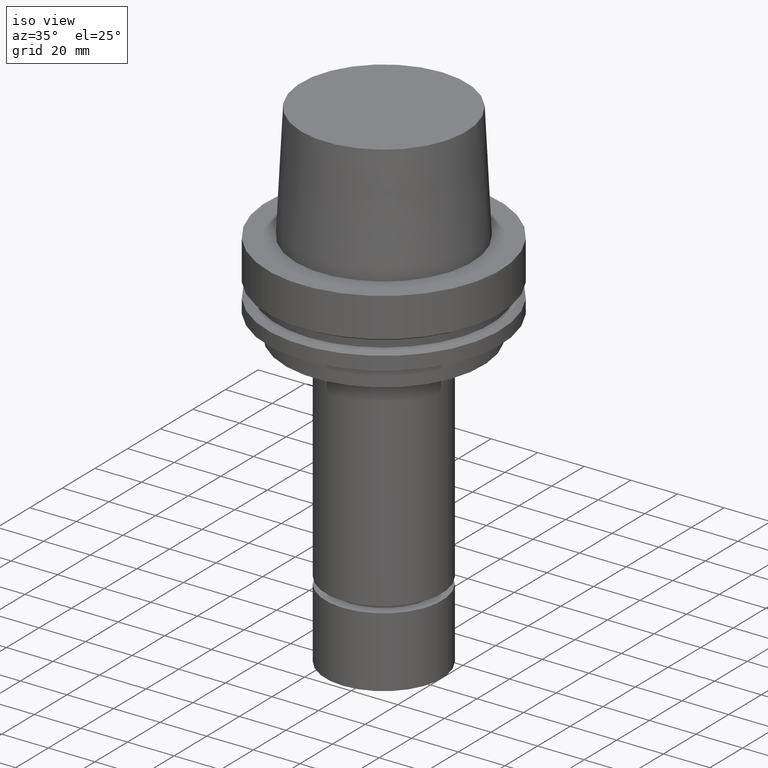
[diagram: clean part render]
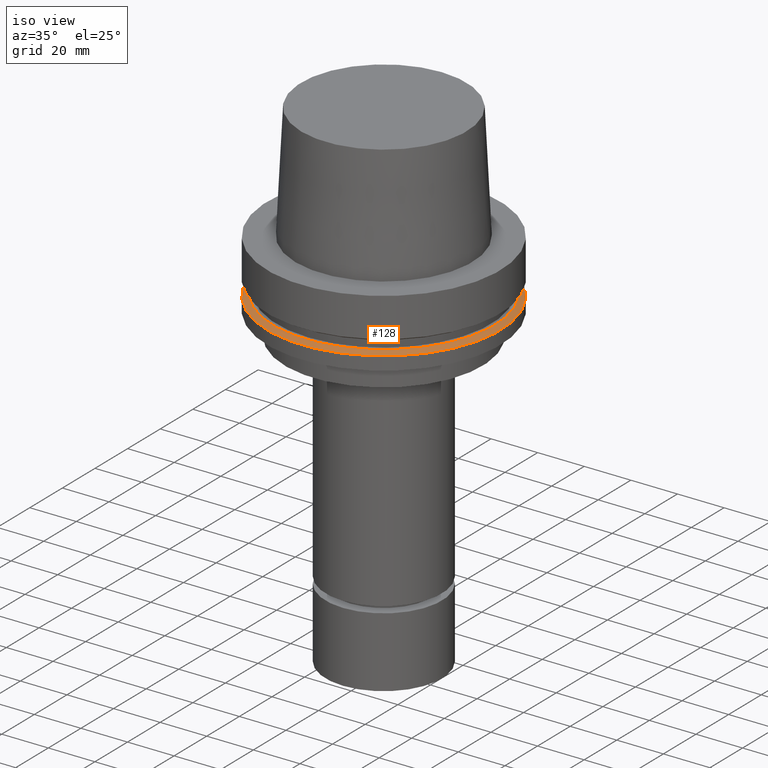
[diagram: same view with one face highlighted and labeled with its STEP entity id]
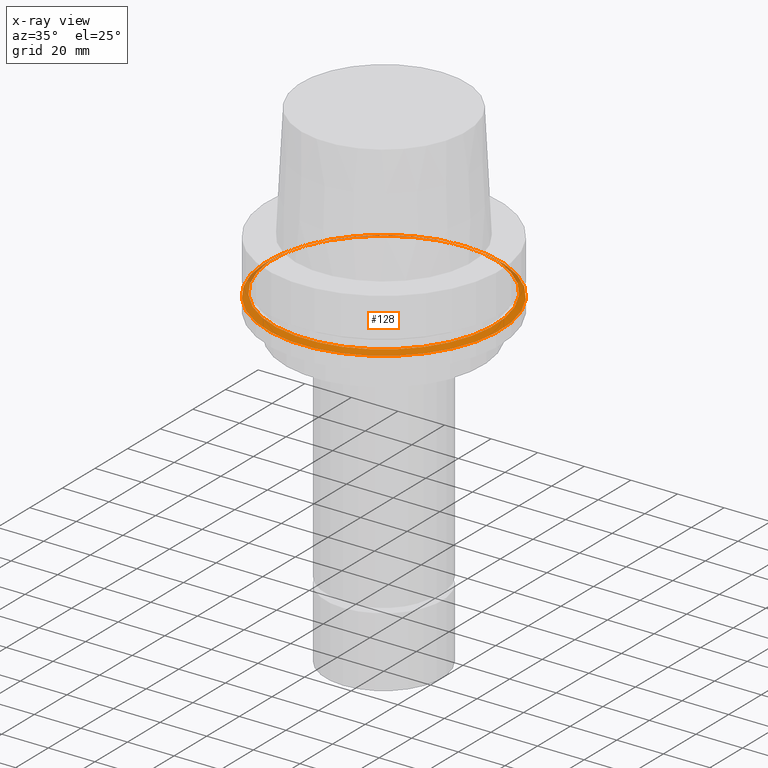
[diagram: x-ray of the same camera — body ghosted, the highlighted face saturated]
A machine part, iso view. The second image highlights one B-rep face of the part: STEP entity #128.
The next image is the same camera in x-ray: the body ghosted, the highlighted face saturated — about 10% of this face is hidden behind the body in this view.
In plain terms, the highlighted conical surface has half-angle 60 deg.
Its self-contained STEP definition (entity closure, byte-faithful):
#128=ADVANCED_FACE('Unnamed[1]',(#294,#295),#296,.T.);
#154=EDGE_CURVE('Unnamed[1]',#334,#334,#335,.T.);
#198=EDGE_CURVE('Unnamed[1]',#402,#402,#403,.T.);
#294=FACE_BOUND('',#512,.T.);
#295=FACE_BOUND('',#513,.T.);
#296=CONICAL_SURFACE('',#514,48.81129763,1.04719755328238);
#334=VERTEX_POINT('',#562);
#335=CIRCLE('',#563,50.0);
#402=VERTEX_POINT('',#646);
#403=CIRCLE('',#647,47.62259526);
#512=EDGE_LOOP('',(#732));
#513=EDGE_LOOP('',(#733));
#514=AXIS2_PLACEMENT_3D('',#734,#735,#736);
#562=CARTESIAN_POINT('',(1.42350465615161E-015,50.0,-23.24759526));
#563=AXIS2_PLACEMENT_3D('',#779,#780,#781);
#646=CARTESIAN_POINT('',(1.33945743656742E-015,47.62259526,-21.875));
#647=AXIS2_PLACEMENT_3D('',#854,#855,#856);
#732=ORIENTED_EDGE('',*,*,#154,.F.);
#733=ORIENTED_EDGE('',*,*,#198,.T.);
#734=CARTESIAN_POINT('',(1.38148104635951E-015,2.76296209271903E-015,-22.56129763));
#735=DIRECTION('',(6.12323399573677E-017,1.22464679914735E-016,-1.0));
#736=DIRECTION('',(-1.23259516440783E-032,1.0,1.22464679914735E-016));
#779=CARTESIAN_POINT('',(1.42350465615161E-015,2.84700931230322E-015,-23.24759526));
#780=DIRECTION('',(6.12323399573677E-017,1.22464679914735E-016,-1.0));
#781=DIRECTION('',(-1.23259516440783E-032,1.0,1.22464679914735E-016));
#854=CARTESIAN_POINT('',(1.33945743656742E-015,2.67891487313483E-015,-21.875));
#855=DIRECTION('',(6.12323399573676E-017,1.22464679914735E-016,-1.0));
#856=DIRECTION('',(-1.23259516440783E-032,1.0,1.22464679914735E-016));